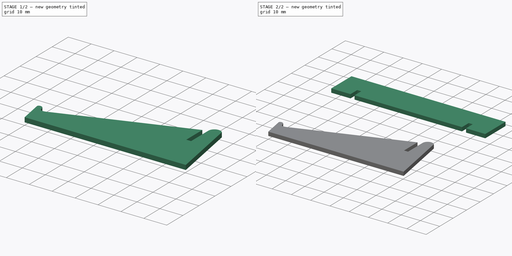
[diagram: build sequence overview — one tinted view per stage of 2, left to right]
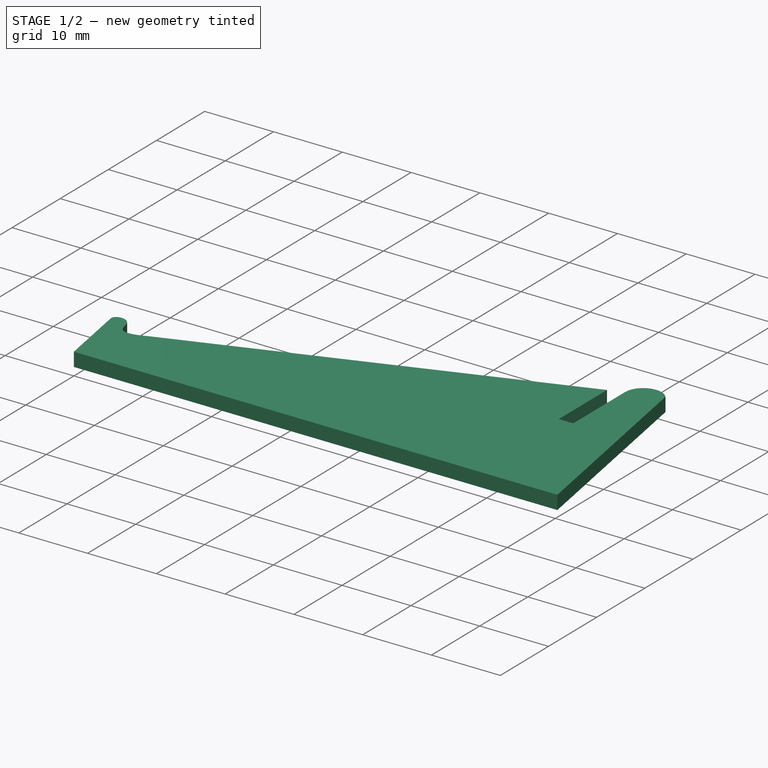
[diagram: stage 1 of 2 — iso view after this stage's code; geometry added in this stage tinted green]
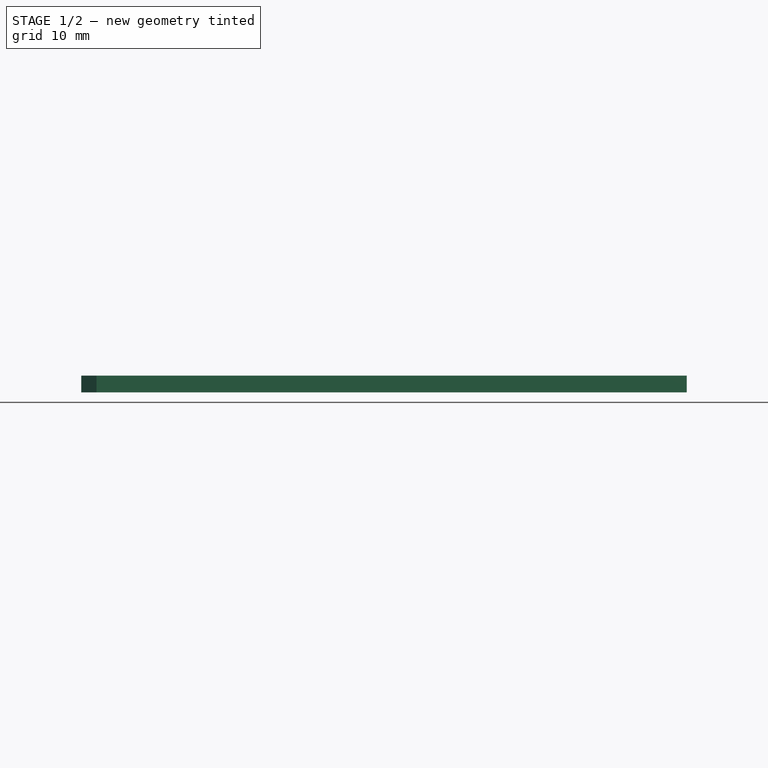
[diagram: stage 1 of 2 — front view after this stage's code; geometry added in this stage tinted green]
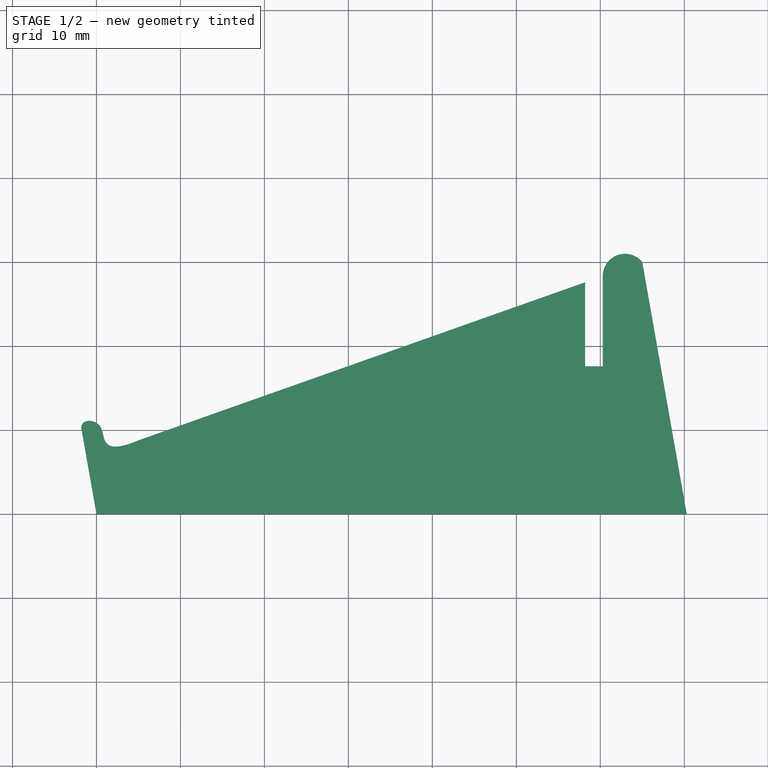
[diagram: stage 1 of 2 — top view after this stage's code; geometry added in this stage tinted green]
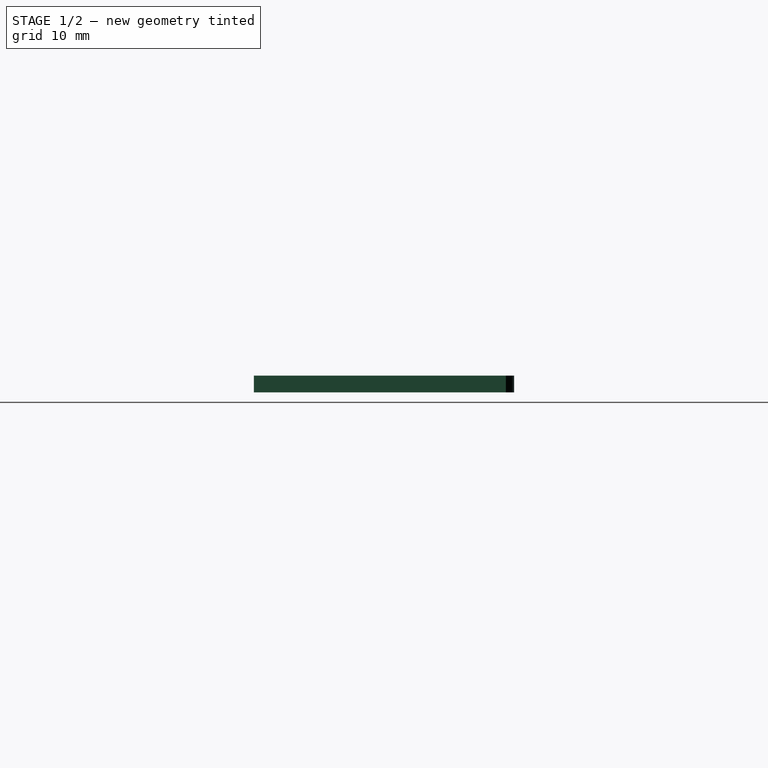
[diagram: stage 1 of 2 — right view after this stage's code; geometry added in this stage tinted green]
FCSTD DOCUMENT  (FreeCAD 0.20R27319 (Git))
Label: Bowl Stand
License: All rights reserved
LicenseURL: http://en.wikipedia.org/wiki/All_rights_reserved
objects: PartDesign::Body×3, Sketcher::SketchObject×2, PartDesign::Pad×2, PartDesign::FeatureBase×1
note: 10 computed .brp shape members not serialized (recipe doc carries the construction recipe); baked Part::Feature solids carry a one-line shape summary decoded from their .brp

FEATURE [Sketcher::SketchObject] Sketch
  FullyConstrained = false
  MapMode = 5
  Support = -> [XY_Plane]
  sketch-geometry (18):
    g0: LineSegment StartX=0 StartY=0 StartZ=0 EndX=70.2898 EndY=0 EndZ=0
    g1: LineSegment StartX=70.2898 StartY=0 StartZ=0 EndX=65 EndY=30 EndZ=0
    g2: LineSegment StartX=60.2898 StartY=28.3333 StartZ=0 EndX=60.2898 EndY=17.5902 EndZ=0
    g3: LineSegment StartX=60.2898 StartY=17.5902 StartZ=0 EndX=58.1898 EndY=17.5902 EndZ=0
    g4: LineSegment StartX=58.1898 StartY=17.5902 StartZ=0 EndX=58.1898 EndY=27.5902 EndZ=0
    g5: LineSegment StartX=58.1898 StartY=27.5902 StartZ=0 EndX=5 EndY=8.76923 EndZ=0
    g6: LineSegment StartX=65 StartY=30 StartZ=0 EndX=0 EndY=7 EndZ=0
    g7: ArcOfCircle CenterX=62.9398 CenterY=28.3333 CenterZ=0 NormalX=0 NormalY=0 NormalZ=1 AngleXU=0 Radius=2.64997 StartAngle=0.680194 EndAngle=3.14159
    g8: LineSegment StartX=-1.76327 StartY=10 StartZ=0 EndX=0 EndY=0 EndZ=0
    g9-g13: Circle x5 (B-spline internal-alignment scaffolding for g14; pole/knot coordinates omitted)
    g14: BSplineCurve PolesCount=5 KnotsCount=3 Degree=3 IsPeriodic=0
    g15: GeomPoint X=-1.76327 Y=10 Z=0
    g16: GeomPoint X=0.502431 Y=10.3267 Z=0
    g17: GeomPoint X=5 Y=8.76923 Z=0
  constraints (34):
    c: PointOnObject(g0,g-1)
    c: Coincident(g0,g1)
    c: Angle(g1) = 1.74533
    c: Coincident(g0,g-1)
    c: Coincident(g2,g3)
    c: Coincident(g3,g4)
    c: Horizontal(g3)
    c: Vertical(g2)
    c: Vertical(g4)
    c: Distance(g3) = 2.1
    c: DistanceY(g1) = 30
    c: DistanceX(g1) = 65
    c: DistanceX(g2,g0) = 10
    c: Coincident(g6,g1)
    c: PointOnObject(g6,g-2)
    c: DistanceY(g6) = 7
    c: PointOnObject(g5,g6)
    c: Coincident(g4,g5)
    c: PointOnObject(g4,g6)
    c: PointOnObject(g2,g6)
    c: DistanceX(g5) = 5
    c: DistanceY(g6,g8) = 3
    c: Distance(g4) = 10
    c: Coincident(g7,g1)
    c: Tangent(g7,g2) = -1.5708
    c: Coincident(g8,g0)
    c: Coincident(g14,g8)
    c: Weight(g9) = 1
    c: Equal(g9, g10-g13) x4
    c: Coincident(g14,g5)
    c: InternalAlignment(g9-g13 -> g14) x5
    c: InternalAlignment(g15,g14)
    c: InternalAlignment(g16,g14)
    c: InternalAlignment(g17,g14)
FEATURE [PartDesign::Pad] Pad
  Direction = (0,0,1)
  Length = 2
  Length2 = 10
  Profile = -> Sketch
  ReferenceAxis = -> Sketch [N_Axis]
  Type = 0
FEATURE [PartDesign::Body] Body001  label="Cross member"
  Group = -> [Sketch001,Pad001]
  Origin = -> Origin001
  Tip = -> Pad001
FEATURE [PartDesign::FeatureBase] Clone
  BaseFeature = -> Body
FEATURE [PartDesign::Body] Body002  label="Support 2"
  Group = -> [Clone]
  Origin = -> Origin002
  Placement = pos=(0,-40,0) rot=(0,0,1;0rad)
  Tip = -> Clone
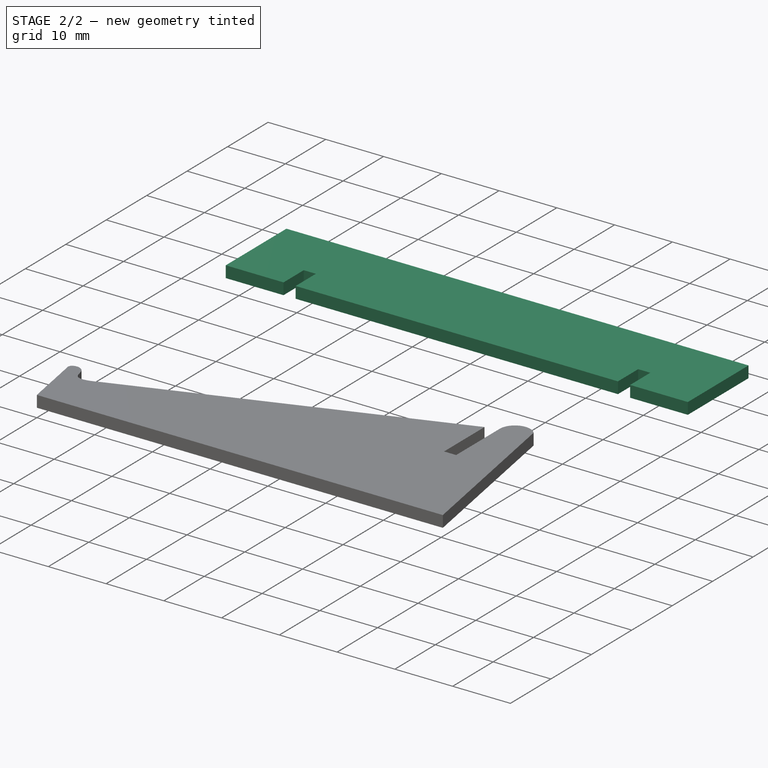
[diagram: stage 2 of 2 — iso view after this stage's code; geometry added in this stage tinted green]
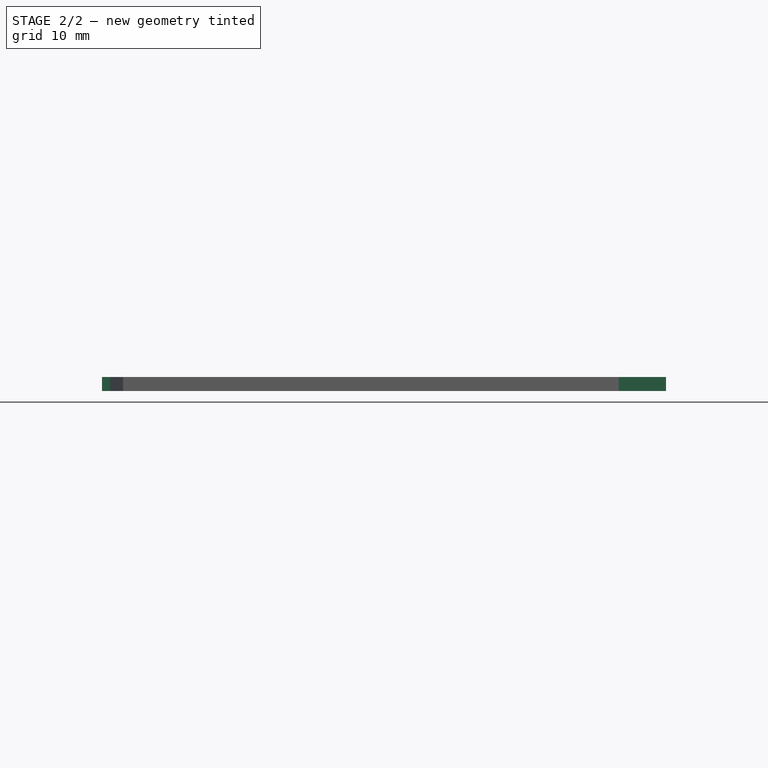
[diagram: stage 2 of 2 — front view after this stage's code; geometry added in this stage tinted green]
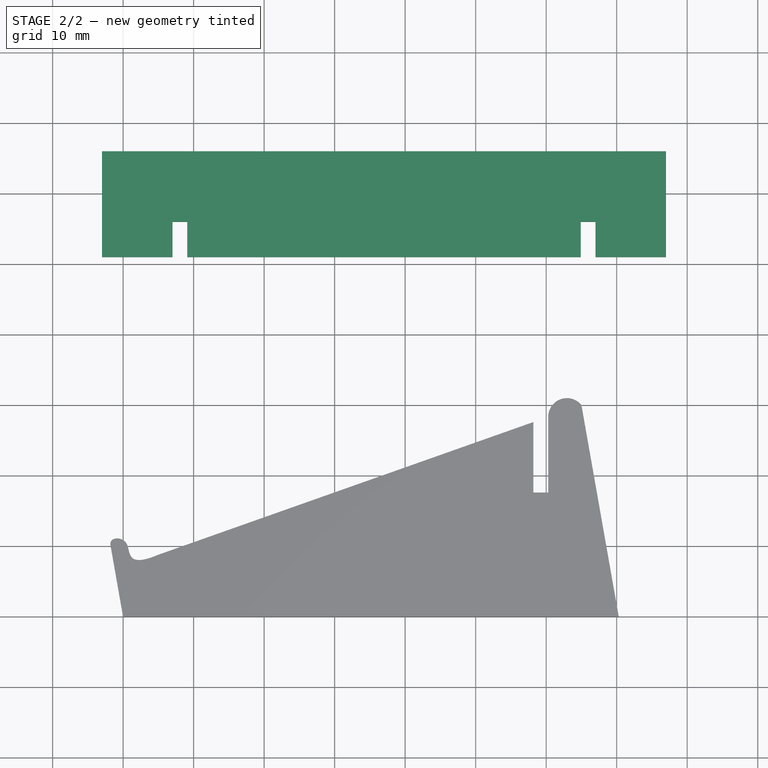
[diagram: stage 2 of 2 — top view after this stage's code; geometry added in this stage tinted green]
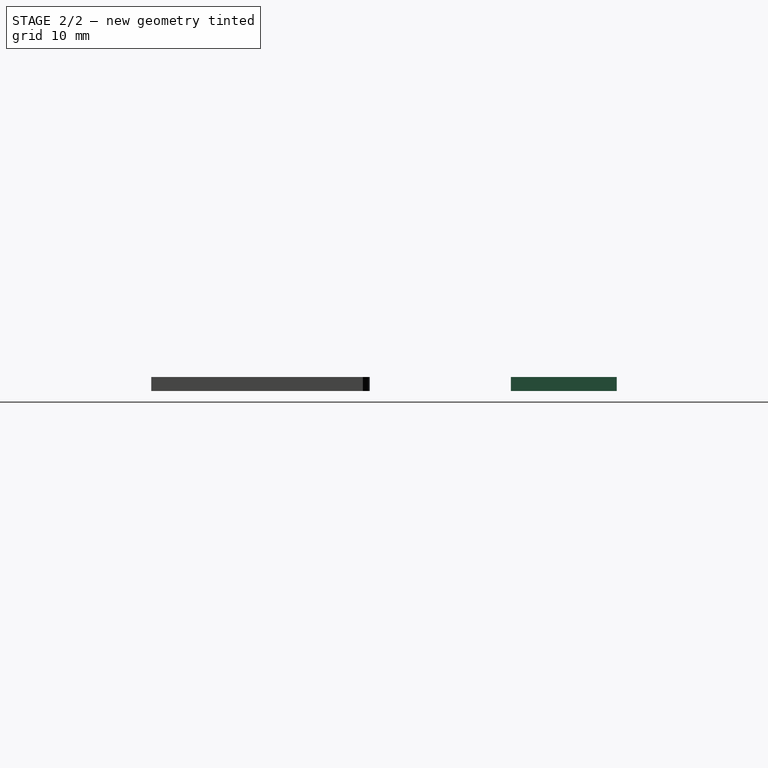
[diagram: stage 2 of 2 — right view after this stage's code; geometry added in this stage tinted green]
FEATURE [PartDesign::Body] Body  label="Support 1"
  Group = -> [Sketch,Pad]
  Origin = -> Origin
  Tip = -> Pad
FEATURE [Sketcher::SketchObject] Sketch001
  AttachmentOffset = pos=(37,36,0) rot=(0,0,1;0rad)
  FullyConstrained = true
  MapMode = 5
  Placement = pos=(37,36,0) rot=(0,0,1;0rad)
  Support = -> [XY_Plane001]
  sketch-geometry (12):
    g0: LineSegment StartX=40 StartY=30 StartZ=0 EndX=40 EndY=15 EndZ=0
    g1: LineSegment StartX=40 StartY=15 StartZ=0 EndX=30 EndY=15 EndZ=0
    g2: LineSegment StartX=-40 StartY=15 StartZ=0 EndX=-40 EndY=30 EndZ=0
    g3: LineSegment StartX=-27.9 StartY=15 StartZ=0 EndX=-27.9 EndY=20 EndZ=0
    g4: LineSegment StartX=-27.9 StartY=20 StartZ=0 EndX=-30 EndY=20 EndZ=0
    g5: LineSegment StartX=-30 StartY=20 StartZ=0 EndX=-30 EndY=15 EndZ=0
    g6: LineSegment StartX=30 StartY=15 StartZ=0 EndX=30 EndY=20 EndZ=0
    g7: LineSegment StartX=30 StartY=20 StartZ=0 EndX=27.9 EndY=20 EndZ=0
    g8: LineSegment StartX=27.9 StartY=20 StartZ=0 EndX=27.9 EndY=15 EndZ=0
    g9: LineSegment StartX=-30 StartY=15 StartZ=0 EndX=-40 EndY=15 EndZ=0
    g10: LineSegment StartX=27.9 StartY=15 StartZ=0 EndX=-27.9 EndY=15 EndZ=0
    g11: LineSegment StartX=-40 StartY=30 StartZ=0 EndX=40 EndY=30 EndZ=0
  constraints (32):
    c: Coincident(g0,g1)
    c: Coincident(g9,g2)
    c: Horizontal(g1)
    c: Vertical(g0)
    c: Vertical(g2)
    c: Symmetric(g2,g0,g-2)
    c: Coincident(g3,g4)
    c: Coincident(g4,g5)
    c: Horizontal(g4)
    c: Vertical(g3)
    c: Vertical(g5)
    c: Coincident(g6,g7)
    c: Coincident(g7,g8)
    c: Horizontal(g7)
    c: Vertical(g6)
    c: Symmetric(g3,g8,g-2)
    c: Symmetric(g5,g6,g-2)
    c: Coincident(g10,g3)
    c: Coincident(g9,g5)
    c: Distance(g4) = 2.1
    c: Distance(g9) = 10
    c: Coincident(g1,g6)
    c: Horizontal(g9)
    c: Coincident(g8,g10)
    c: Horizontal(g5,g3)
    c: Symmetric(g3,g7,g-2)
    c: Coincident(g11,g2)
    c: Coincident(g11,g0)
    c: Distance(g11) = 80
    c: DistanceY(g-1,g0) = 30
    c: DistanceY(g6,g0) = 10
    c: Distance(g6) = 5
FEATURE [PartDesign::Pad] Pad001
  Direction = (0,0,1)
  Length = 2
  Length2 = 10
  Profile = -> Sketch001
  ReferenceAxis = -> Sketch001 [N_Axis]
  Type = 0
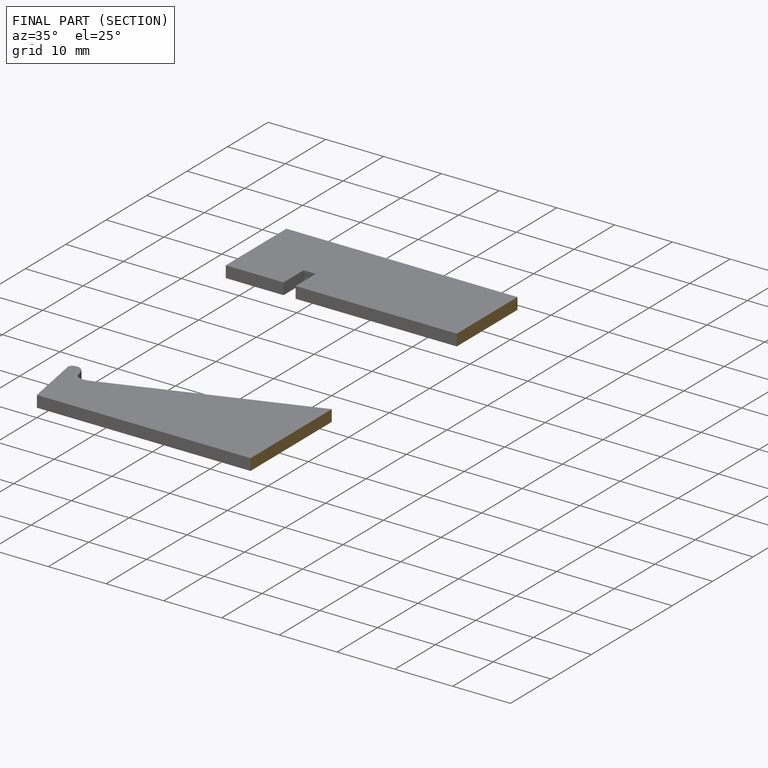
[diagram: finished part — half-section view (interior)]
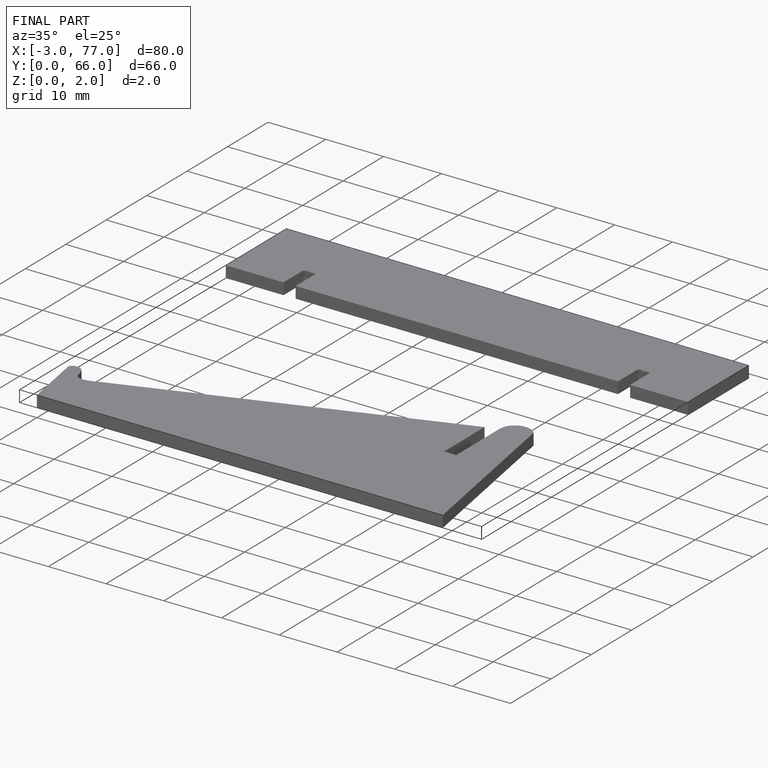
[diagram: finished part — iso view with bounding-box wireframe]
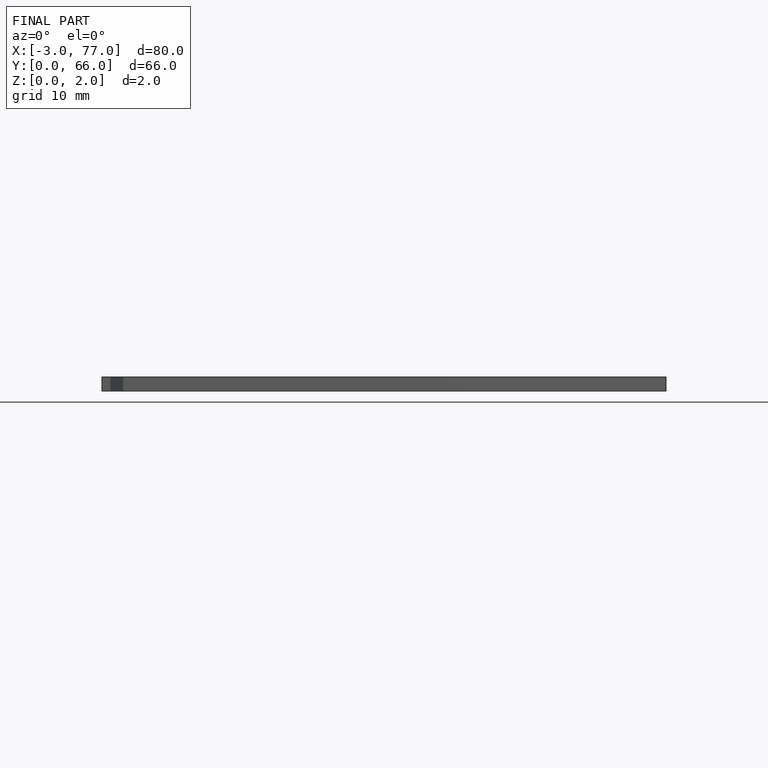
[diagram: finished part — front view with bounding-box wireframe]
